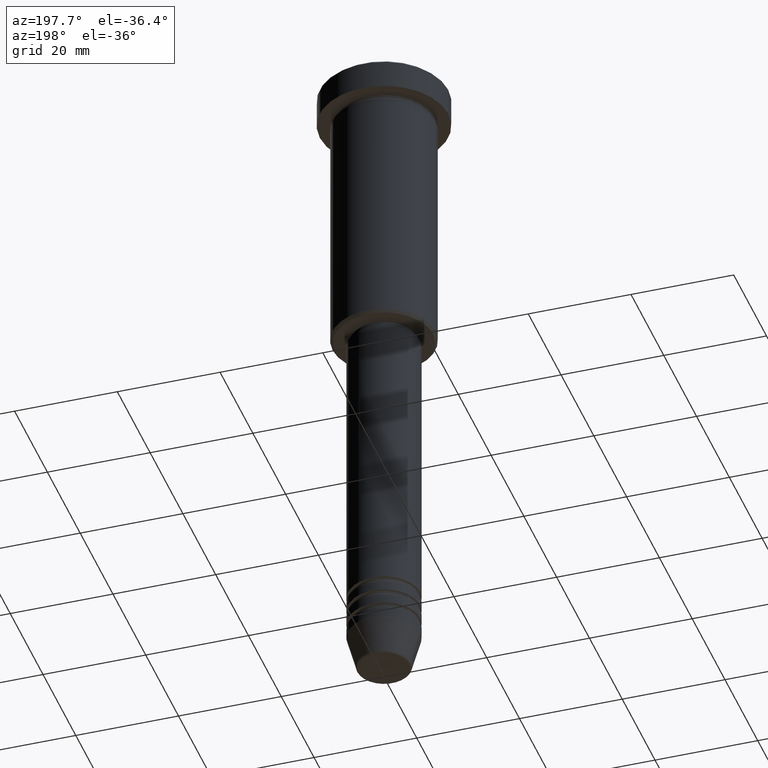
[diagram: clean part render]
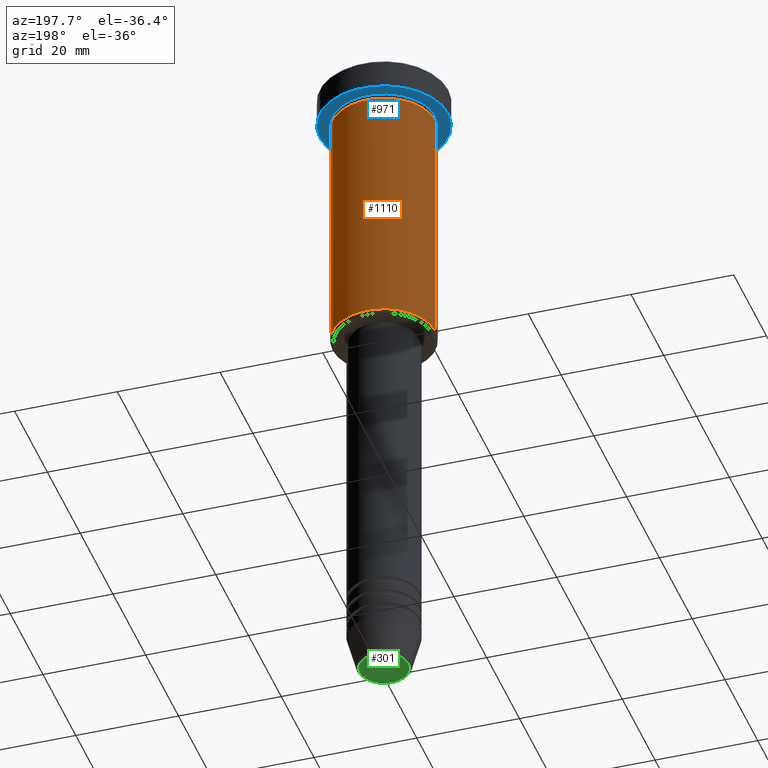
[diagram: same view with three faces highlighted in distinct colors, each labeled with its STEP entity id]
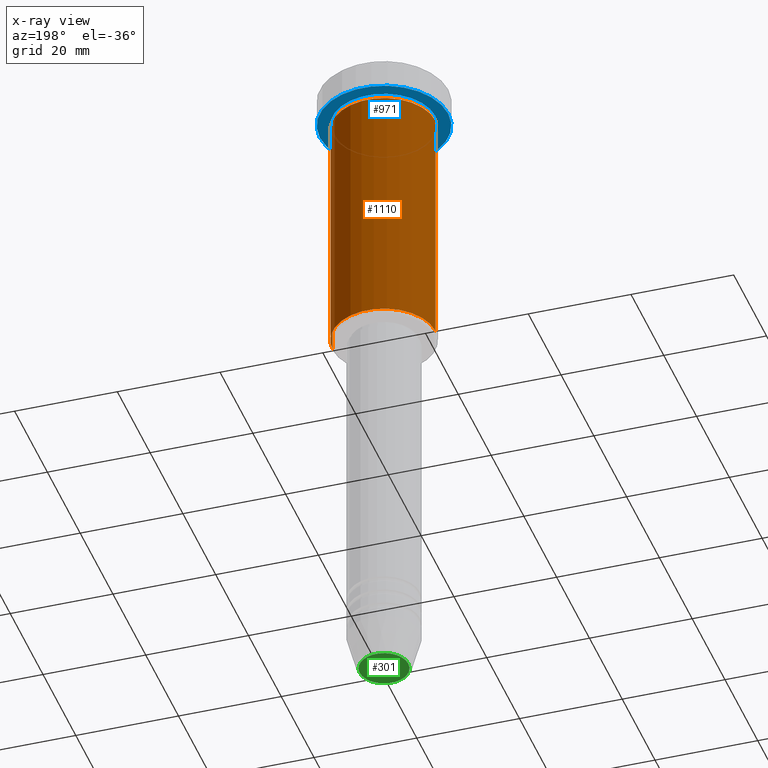
[diagram: x-ray of the same camera — body ghosted, the three highlighted faces saturated]
A machine part, auxiliary view with three faces highlighted in distinct colors.
The next image is the same camera in x-ray (body ghosted, the three faces saturated) — at least one of them is partly hidden behind the body in this view.
Their STEP definitions:

[orange] entity #1110 — the highlighted cylindrical surface (partial cylindrical patch) has radius 10 mm, axis along (-0, -0, 1).
#3 = VERTEX_POINT ( 'NONE', #775 ) ;
#4 = DIRECTION ( 'NONE',  ( 1.000000000000000000, 0.000000000000000000, 0.000000000000000000 ) ) ;
#13 = DIRECTION ( 'NONE',  ( -0.000000000000000000, -0.000000000000000000, 1.000000000000000000 ) ) ;
#132 = ORIENTED_EDGE ( 'NONE', *, *, #1123, .F. ) ;
#159 = AXIS2_PLACEMENT_3D ( 'NONE', #342, #1074, #260 ) ;
#163 = FACE_OUTER_BOUND ( 'NONE', #230, .T. ) ;
#230 = EDGE_LOOP ( 'NONE', ( #831, #376, #132, #259 ) ) ;
#255 = EDGE_CURVE ( 'NONE', #3, #565, #258, .T. ) ;
#258 = CIRCLE ( 'NONE', #415, 10.00000000000000000 ) ;
#259 = ORIENTED_EDGE ( 'NONE', *, *, #1104, .F. ) ;
#260 = DIRECTION ( 'NONE',  ( 1.000000000000000000, 0.000000000000000000, 0.000000000000000000 ) ) ;
#263 = LINE ( 'NONE', #359, #532 ) ;
#292 = EDGE_CURVE ( 'NONE', #565, #1131, #263, .T. ) ;
#342 = CARTESIAN_POINT ( 'NONE',  ( 0.000000000000000000, 0.000000000000000000, 0.000000000000000000 ) ) ;
#359 = CARTESIAN_POINT ( 'NONE',  ( -10.00000000000000000, 1.224646799147353256E-15, 0.000000000000000000 ) ) ;
#376 = ORIENTED_EDGE ( 'NONE', *, *, #292, .T. ) ;
#415 = AXIS2_PLACEMENT_3D ( 'NONE', #640, #546, #651 ) ;
#438 = CYLINDRICAL_SURFACE ( 'NONE', #159, 10.00000000000000000 ) ;
#508 = VECTOR ( 'NONE', #550, 1000.000000000000000 ) ;
#532 = VECTOR ( 'NONE', #13, 1000.000000000000000 ) ;
#546 = DIRECTION ( 'NONE',  ( -0.000000000000000000, -0.000000000000000000, 1.000000000000000000 ) ) ;
#550 = DIRECTION ( 'NONE',  ( -0.000000000000000000, -0.000000000000000000, 1.000000000000000000 ) ) ;
#565 = VERTEX_POINT ( 'NONE', #911 ) ;
#637 = CARTESIAN_POINT ( 'NONE',  ( 10.00000000000000000, 0.000000000000000000, 0.000000000000000000 ) ) ;
#640 = CARTESIAN_POINT ( 'NONE',  ( 0.000000000000000000, 0.000000000000000000, -55.49999999999999289 ) ) ;
#651 = DIRECTION ( 'NONE',  ( -1.000000000000000000, 0.000000000000000000, 0.000000000000000000 ) ) ;
#677 = CIRCLE ( 'NONE', #835, 10.00000000000000000 ) ;
#729 = LINE ( 'NONE', #637, #508 ) ;
#740 = CARTESIAN_POINT ( 'NONE',  ( 10.00000000000000000, 0.000000000000000000, -6.999999999999996447 ) ) ;
#754 = DIRECTION ( 'NONE',  ( -0.000000000000000000, -0.000000000000000000, 1.000000000000000000 ) ) ;
#763 = CARTESIAN_POINT ( 'NONE',  ( 0.000000000000000000, 0.000000000000000000, -6.999999999999996447 ) ) ;
#775 = CARTESIAN_POINT ( 'NONE',  ( 10.00000000000000000, 0.000000000000000000, -55.49999999999999289 ) ) ;
#831 = ORIENTED_EDGE ( 'NONE', *, *, #255, .T. ) ;
#835 = AXIS2_PLACEMENT_3D ( 'NONE', #763, #754, #4 ) ;
#911 = CARTESIAN_POINT ( 'NONE',  ( -10.00000000000000000, 1.224646799147353256E-15, -55.49999999999999289 ) ) ;
#1013 = CARTESIAN_POINT ( 'NONE',  ( -10.00000000000000000, 1.224646799147353256E-15, -6.999999999999996447 ) ) ;
#1074 = DIRECTION ( 'NONE',  ( -0.000000000000000000, -0.000000000000000000, 1.000000000000000000 ) ) ;
#1104 = EDGE_CURVE ( 'NONE', #3, #1167, #729, .T. ) ;
#1110 = ADVANCED_FACE ( 'NONE', ( #163 ), #438, .T. ) ;
#1123 = EDGE_CURVE ( 'NONE', #1167, #1131, #677, .T. ) ;
#1131 = VERTEX_POINT ( 'NONE', #1013 ) ;
#1167 = VERTEX_POINT ( 'NONE', #740 ) ;

[blue] entity #971 — the highlighted planar face has unit normal (0, 0, -1).
#63 = DIRECTION ( 'NONE',  ( -0.000000000000000000, -0.000000000000000000, 1.000000000000000000 ) ) ;
#74 = CARTESIAN_POINT ( 'NONE',  ( 12.50000000000000000, 0.000000000000000000, -5.999999999999996447 ) ) ;
#75 = ORIENTED_EDGE ( 'NONE', *, *, #496, .T. ) ;
#86 = ORIENTED_EDGE ( 'NONE', *, *, #203, .F. ) ;
#127 = CIRCLE ( 'NONE', #726, 10.00000000000000000 ) ;
#146 = DIRECTION ( 'NONE',  ( -0.000000000000000000, -0.000000000000000000, 1.000000000000000000 ) ) ;
#165 = CARTESIAN_POINT ( 'NONE',  ( 0.000000000000000000, 0.000000000000000000, -5.999999999999996447 ) ) ;
#203 = EDGE_CURVE ( 'NONE', #641, #1012, #919, .T. ) ;
#252 = EDGE_LOOP ( 'NONE', ( #998, #75 ) ) ;
#290 = EDGE_CURVE ( 'NONE', #341, #675, #826, .T. ) ;
#341 = VERTEX_POINT ( 'NONE', #779 ) ;
#344 = DIRECTION ( 'NONE',  ( -1.000000000000000000, 0.000000000000000000, 0.000000000000000000 ) ) ;
#422 = ORIENTED_EDGE ( 'NONE', *, *, #887, .F. ) ;
#428 = DIRECTION ( 'NONE',  ( 1.000000000000000000, 0.000000000000000000, 0.000000000000000000 ) ) ;
#461 = DIRECTION ( 'NONE',  ( -0.000000000000000000, -0.000000000000000000, 1.000000000000000000 ) ) ;
#496 = EDGE_CURVE ( 'NONE', #675, #341, #127, .T. ) ;
#551 = DIRECTION ( 'NONE',  ( -0.000000000000000000, -0.000000000000000000, 1.000000000000000000 ) ) ;
#562 = DIRECTION ( 'NONE',  ( -1.000000000000000000, 0.000000000000000000, 0.000000000000000000 ) ) ;
#582 = CARTESIAN_POINT ( 'NONE',  ( 0.000000000000000000, 0.000000000000000000, -5.999999999999996447 ) ) ;
#619 = DIRECTION ( 'NONE',  ( -1.000000000000000000, 0.000000000000000000, -0.000000000000000000 ) ) ;
#622 = AXIS2_PLACEMENT_3D ( 'NONE', #708, #810, #619 ) ;
#641 = VERTEX_POINT ( 'NONE', #1014 ) ;
#645 = CARTESIAN_POINT ( 'NONE',  ( 0.000000000000000000, 0.000000000000000000, -5.999999999999996447 ) ) ;
#666 = AXIS2_PLACEMENT_3D ( 'NONE', #886, #63, #428 ) ;
#675 = VERTEX_POINT ( 'NONE', #1008 ) ;
#708 = CARTESIAN_POINT ( 'NONE',  ( 0.000000000000000000, 12.50000000000000000, -5.999999999999996447 ) ) ;
#726 = AXIS2_PLACEMENT_3D ( 'NONE', #165, #551, #344 ) ;
#779 = CARTESIAN_POINT ( 'NONE',  ( -10.00000000000000000, 0.000000000000000000, -5.999999999999996447 ) ) ;
#794 = PLANE ( 'NONE',  #622 ) ;
#797 = AXIS2_PLACEMENT_3D ( 'NONE', #582, #146, #968 ) ;
#804 = AXIS2_PLACEMENT_3D ( 'NONE', #645, #461, #562 ) ;
#810 = DIRECTION ( 'NONE',  ( 0.000000000000000000, 0.000000000000000000, -1.000000000000000000 ) ) ;
#826 = CIRCLE ( 'NONE', #804, 10.00000000000000000 ) ;
#834 = EDGE_LOOP ( 'NONE', ( #422, #86 ) ) ;
#886 = CARTESIAN_POINT ( 'NONE',  ( 0.000000000000000000, 0.000000000000000000, -5.999999999999996447 ) ) ;
#887 = EDGE_CURVE ( 'NONE', #1012, #641, #967, .T. ) ;
#898 = FACE_BOUND ( 'NONE', #252, .T. ) ;
#919 = CIRCLE ( 'NONE', #666, 12.50000000000000000 ) ;
#967 = CIRCLE ( 'NONE', #797, 12.50000000000000000 ) ;
#968 = DIRECTION ( 'NONE',  ( 1.000000000000000000, 0.000000000000000000, 0.000000000000000000 ) ) ;
#971 = ADVANCED_FACE ( 'NONE', ( #898, #1173 ), #794, .T. ) ;
#998 = ORIENTED_EDGE ( 'NONE', *, *, #290, .T. ) ;
#1008 = CARTESIAN_POINT ( 'NONE',  ( 10.00000000000000000, 1.224646799147353256E-15, -5.999999999999996447 ) ) ;
#1012 = VERTEX_POINT ( 'NONE', #74 ) ;
#1014 = CARTESIAN_POINT ( 'NONE',  ( -12.50000000000000000, 1.530808498934191521E-15, -5.999999999999996447 ) ) ;
#1173 = FACE_OUTER_BOUND ( 'NONE', #834, .T. ) ;

[green] entity #301 — the highlighted planar face has unit normal (0, -0, 1).
#1 = CARTESIAN_POINT ( 'NONE',  ( 0.000000000000000000, 0.000000000000000000, -131.0000000000000000 ) ) ;
#19 = AXIS2_PLACEMENT_3D ( 'NONE', #1, #275, #1015 ) ;
#92 = CIRCLE ( 'NONE', #856, 4.740692158992654726 ) ;
#116 = ORIENTED_EDGE ( 'NONE', *, *, #745, .T. ) ;
#141 = DIRECTION ( 'NONE',  ( 0.000000000000000000, 0.000000000000000000, -1.000000000000000000 ) ) ;
#275 = DIRECTION ( 'NONE',  ( 0.000000000000000000, -0.000000000000000000, 1.000000000000000000 ) ) ;
#300 = DIRECTION ( 'NONE',  ( 1.000000000000000000, 0.000000000000000000, 0.000000000000000000 ) ) ;
#301 = ADVANCED_FACE ( 'NONE', ( #635 ), #375, .F. ) ;
#375 = PLANE ( 'NONE',  #19 ) ;
#403 = ORIENTED_EDGE ( 'NONE', *, *, #937, .T. ) ;
#413 = CARTESIAN_POINT ( 'NONE',  ( 4.740692158992654726, 0.000000000000000000, -131.0000000000000000 ) ) ;
#524 = AXIS2_PLACEMENT_3D ( 'NONE', #771, #141, #300 ) ;
#575 = DIRECTION ( 'NONE',  ( 0.000000000000000000, 0.000000000000000000, -1.000000000000000000 ) ) ;
#635 = FACE_OUTER_BOUND ( 'NONE', #665, .T. ) ;
#650 = CARTESIAN_POINT ( 'NONE',  ( 0.000000000000000000, 0.000000000000000000, -131.0000000000000000 ) ) ;
#662 = DIRECTION ( 'NONE',  ( 1.000000000000000000, 0.000000000000000000, 0.000000000000000000 ) ) ;
#665 = EDGE_LOOP ( 'NONE', ( #403, #116 ) ) ;
#745 = EDGE_CURVE ( 'NONE', #751, #773, #92, .T. ) ;
#751 = VERTEX_POINT ( 'NONE', #942 ) ;
#771 = CARTESIAN_POINT ( 'NONE',  ( 0.000000000000000000, 0.000000000000000000, -131.0000000000000000 ) ) ;
#773 = VERTEX_POINT ( 'NONE', #413 ) ;
#856 = AXIS2_PLACEMENT_3D ( 'NONE', #650, #575, #662 ) ;
#912 = CIRCLE ( 'NONE', #524, 4.740692158992654726 ) ;
#937 = EDGE_CURVE ( 'NONE', #773, #751, #912, .T. ) ;
#942 = CARTESIAN_POINT ( 'NONE',  ( -4.740692158992654726, 6.101402971097978774E-16, -131.0000000000000000 ) ) ;
#1015 = DIRECTION ( 'NONE',  ( 1.000000000000000000, 0.000000000000000000, 0.000000000000000000 ) ) ;